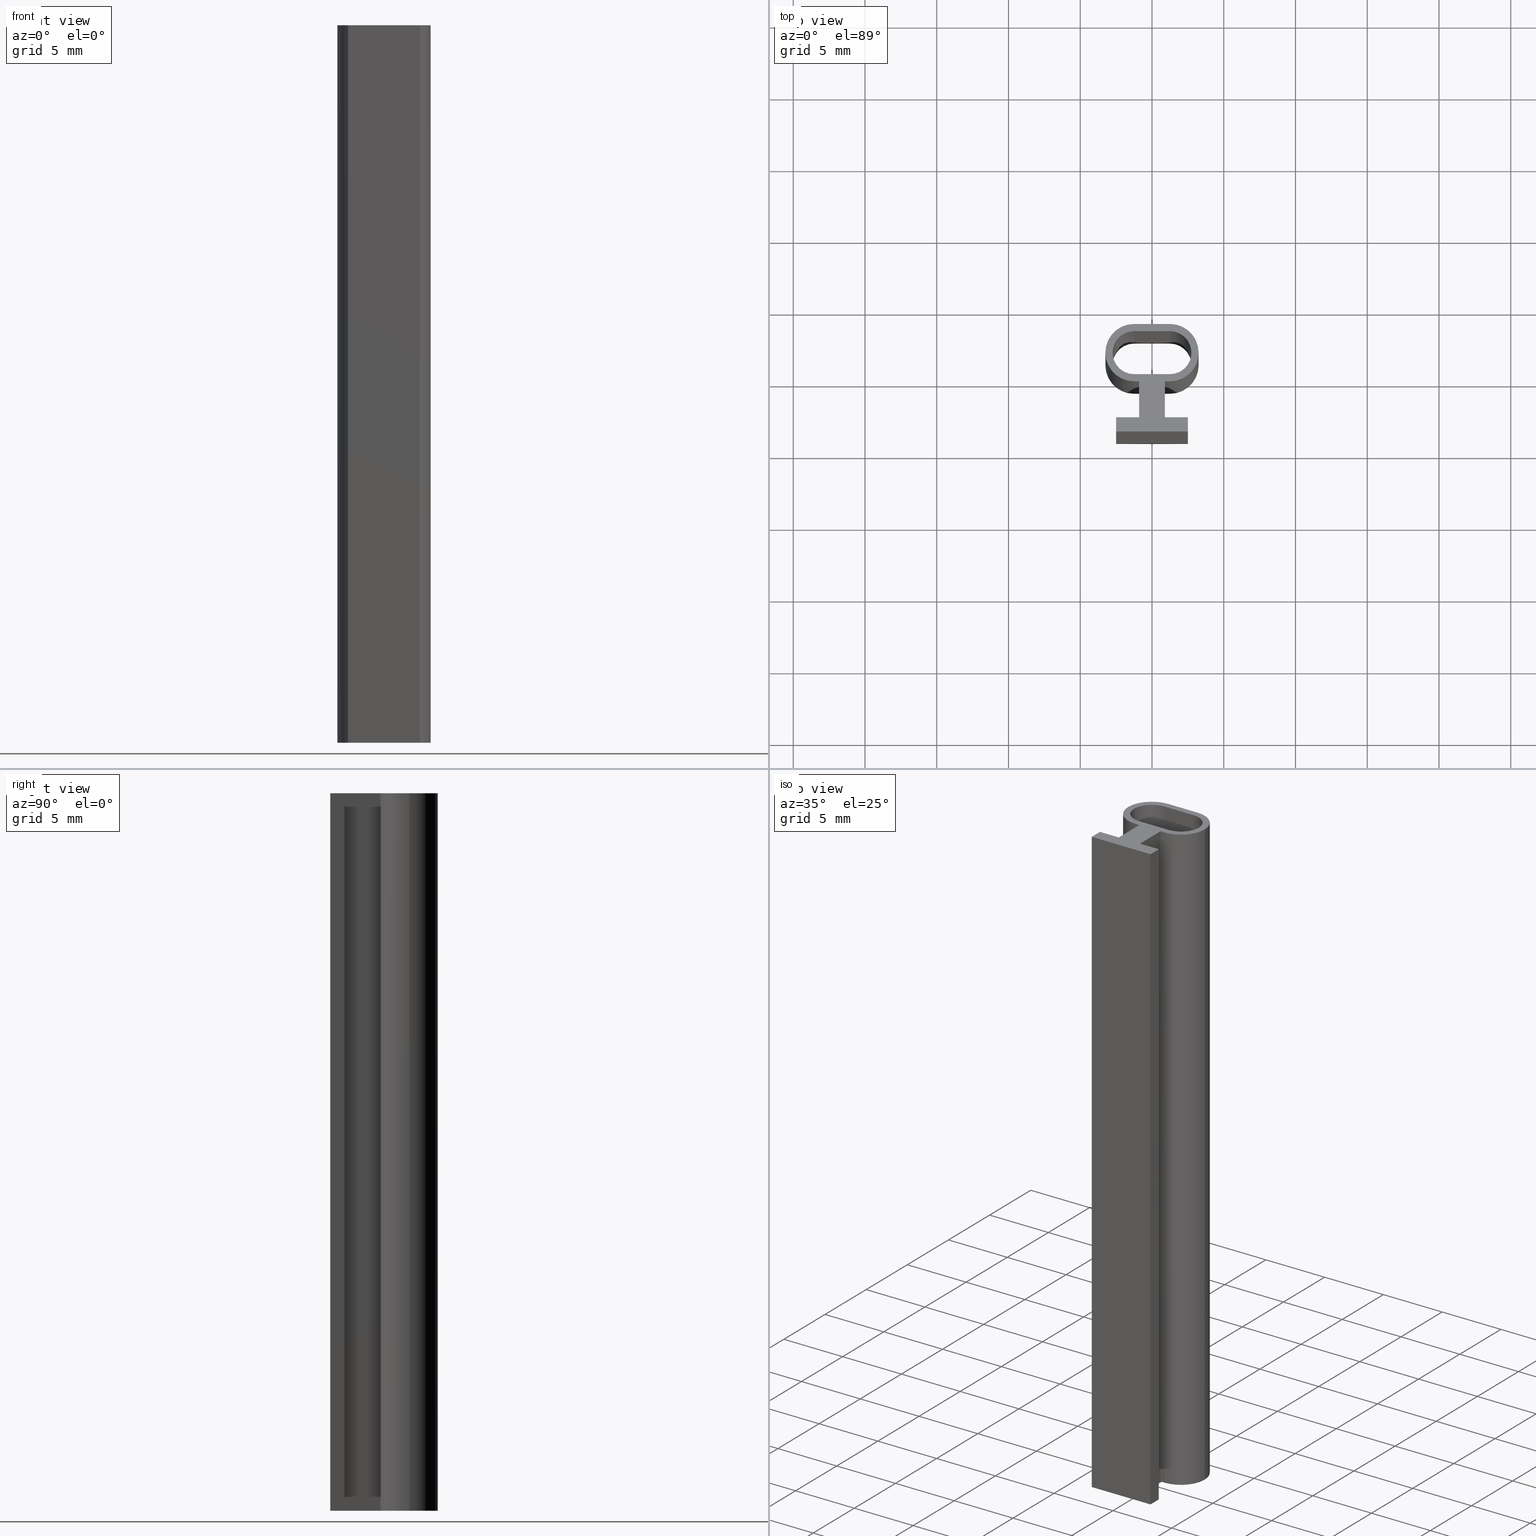
[diagram: canonical four-view strip — front | top / right | iso, engineering-drawing reading convention]
A machine part, canonical four-view strip (front | top / right | iso — engineering-drawing reading convention). The complete STEP part file that produces these views, byte-faithful:
ISO-10303-21;
HEADER;
/****************************************************************
 * Generated by software with PDE/Lib inside                    *
 * PDElib Version v4.4, created Mon 02/23/2004                  *
 * International Technegroup Inc. (www.iti-oh.com)              *
 ****************************************************************/
FILE_DESCRIPTION(('STEP AP203'),'2;1');
FILE_NAME('80GU0001.stp','2011-06-06T18:23:08',(''),(''),'2009.3.110','THINKDESIGN','');
FILE_SCHEMA(('CONFIG_CONTROL_DESIGN'));
ENDSEC;
DATA;
#2=CARTESIAN_POINT('',(1.250000000000000,1.500000000000000,-50.0));
#3=DIRECTION('',(0.0,0.0,1.0));
#4=DIRECTION('',(6.123234E-017,-1.0,0.0));
#5=AXIS2_PLACEMENT_3D('',#2,#3,#4);
#6=CYLINDRICAL_SURFACE('',#5,2.0);
#7=CARTESIAN_POINT('',(1.250000000000000,-0.500000000000000,-50.0));
#8=VERTEX_POINT('',#7);
#9=CARTESIAN_POINT('',(3.250000000000000,1.500000000000000,-50.0));
#10=VERTEX_POINT('',#9);
#11=CARTESIAN_POINT('',(1.250000000000000,1.500000000000000,-50.0));
#12=DIRECTION('',(0.0,0.0,1.0));
#13=DIRECTION('',(1.0,0.0,0.0));
#14=AXIS2_PLACEMENT_3D('',#11,#12,#13);
#15=CIRCLE('',#14,2.0);
#16=EDGE_CURVE('',#8,#10,#15,.T.);
#17=ORIENTED_EDGE('',*,*,#16,.T.);
#18=CARTESIAN_POINT('',(3.250000000000000,1.500000000000000,0.0));
#19=VERTEX_POINT('',#18);
#20=CARTESIAN_POINT('',(3.250000000000000,1.500000000000000,-50.0));
#21=DIRECTION('',(0.0,0.0,1.0));
#22=VECTOR('',#21,50.0);
#23=LINE('',#20,#22);
#24=EDGE_CURVE('',#10,#19,#23,.T.);
#25=ORIENTED_EDGE('',*,*,#24,.T.);
#26=CARTESIAN_POINT('',(1.250000000000000,-0.500000000000000,0.0));
#27=VERTEX_POINT('',#26);
#28=CARTESIAN_POINT('',(1.250000000000000,1.500000000000000,0.0));
#29=DIRECTION('',(0.0,0.0,1.0));
#30=DIRECTION('',(1.0,0.0,0.0));
#31=AXIS2_PLACEMENT_3D('',#28,#29,#30);
#32=CIRCLE('',#31,2.0);
#33=EDGE_CURVE('',#27,#19,#32,.T.);
#34=ORIENTED_EDGE('',*,*,#33,.F.);
#35=CARTESIAN_POINT('',(1.250000000000000,-0.500000000000000,-50.0));
#36=DIRECTION('',(0.0,0.0,1.0));
#37=VECTOR('',#36,50.0);
#38=LINE('',#35,#37);
#39=EDGE_CURVE('',#8,#27,#38,.T.);
#40=ORIENTED_EDGE('',*,*,#39,.F.);
#41=EDGE_LOOP('',(#17,#25,#34,#40));
#42=FACE_OUTER_BOUND('',#41,.T.);
#43=ADVANCED_FACE('',(#42),#6,.T.);
#44=CARTESIAN_POINT('',(1.250000000000000,1.500000000000000,-50.0));
#45=DIRECTION('',(0.0,0.0,1.0));
#46=DIRECTION('',(1.0,6.123234E-017,0.0));
#47=AXIS2_PLACEMENT_3D('',#44,#45,#46);
#48=CYLINDRICAL_SURFACE('',#47,2.0);
#49=CARTESIAN_POINT('',(1.250000000000000,3.500000000000000,-50.0));
#50=VERTEX_POINT('',#49);
#51=CARTESIAN_POINT('',(1.250000000000000,1.500000000000000,-50.0));
#52=DIRECTION('',(0.0,0.0,1.0));
#53=DIRECTION('',(0.0,1.0,0.0));
#54=AXIS2_PLACEMENT_3D('',#51,#52,#53);
#55=CIRCLE('',#54,2.0);
#56=EDGE_CURVE('',#10,#50,#55,.T.);
#57=ORIENTED_EDGE('',*,*,#56,.T.);
#58=CARTESIAN_POINT('',(1.250000000000000,3.500000000000000,0.0));
#59=VERTEX_POINT('',#58);
#60=CARTESIAN_POINT('',(1.250000000000000,3.500000000000000,-50.0));
#61=DIRECTION('',(0.0,0.0,1.0));
#62=VECTOR('',#61,50.0);
#63=LINE('',#60,#62);
#64=EDGE_CURVE('',#50,#59,#63,.T.);
#65=ORIENTED_EDGE('',*,*,#64,.T.);
#66=CARTESIAN_POINT('',(1.250000000000000,1.500000000000000,0.0));
#67=DIRECTION('',(0.0,0.0,1.0));
#68=DIRECTION('',(0.0,1.0,0.0));
#69=AXIS2_PLACEMENT_3D('',#66,#67,#68);
#70=CIRCLE('',#69,2.0);
#71=EDGE_CURVE('',#19,#59,#70,.T.);
#72=ORIENTED_EDGE('',*,*,#71,.F.);
#73=ORIENTED_EDGE('',*,*,#24,.F.);
#74=EDGE_LOOP('',(#57,#65,#72,#73));
#75=FACE_OUTER_BOUND('',#74,.T.);
#76=ADVANCED_FACE('',(#75),#48,.T.);
#77=CARTESIAN_POINT('',(1.250000000000000,3.500000000000000,-50.0));
#78=DIRECTION('',(0.0,1.0,0.0));
#79=DIRECTION('',(-1.0,0.0,0.0));
#80=AXIS2_PLACEMENT_3D('',#77,#78,#79);
#81=PLANE('',#80);
#82=CARTESIAN_POINT('',(-1.250000000000000,3.500000000000000,-50.0));
#83=VERTEX_POINT('',#82);
#84=CARTESIAN_POINT('',(1.250000000000000,3.500000000000000,-50.0));
#85=DIRECTION('',(-1.0,0.0,0.0));
#86=VECTOR('',#85,2.500000000000000);
#87=LINE('',#84,#86);
#88=EDGE_CURVE('',#50,#83,#87,.T.);
#89=ORIENTED_EDGE('',*,*,#88,.T.);
#90=CARTESIAN_POINT('',(-1.250000000000000,3.500000000000000,0.0));
#91=VERTEX_POINT('',#90);
#92=CARTESIAN_POINT('',(-1.250000000000000,3.500000000000000,-50.0));
#93=DIRECTION('',(0.0,0.0,1.0));
#94=VECTOR('',#93,50.0);
#95=LINE('',#92,#94);
#96=EDGE_CURVE('',#83,#91,#95,.T.);
#97=ORIENTED_EDGE('',*,*,#96,.T.);
#98=CARTESIAN_POINT('',(1.250000000000000,3.500000000000000,0.0));
#99=DIRECTION('',(-1.0,0.0,0.0));
#100=VECTOR('',#99,2.500000000000000);
#101=LINE('',#98,#100);
#102=EDGE_CURVE('',#59,#91,#101,.T.);
#103=ORIENTED_EDGE('',*,*,#102,.F.);
#104=ORIENTED_EDGE('',*,*,#64,.F.);
#105=EDGE_LOOP('',(#89,#97,#103,#104));
#106=FACE_OUTER_BOUND('',#105,.T.);
#107=ADVANCED_FACE('',(#106),#81,.T.);
#108=CARTESIAN_POINT('',(-1.250000000000000,1.500000000000000,-50.0));
#109=DIRECTION('',(0.0,0.0,1.0));
#110=DIRECTION('',(-6.123234E-017,1.0,0.0));
#111=AXIS2_PLACEMENT_3D('',#108,#109,#110);
#112=CYLINDRICAL_SURFACE('',#111,2.0);
#113=CARTESIAN_POINT('',(-3.250000000000000,1.500000000000000,-50.0));
#114=VERTEX_POINT('',#113);
#115=CARTESIAN_POINT('',(-1.250000000000000,1.500000000000000,-50.0));
#116=DIRECTION('',(0.0,0.0,1.0));
#117=DIRECTION('',(-1.0,0.0,0.0));
#118=AXIS2_PLACEMENT_3D('',#115,#116,#117);
#119=CIRCLE('',#118,2.0);
#120=EDGE_CURVE('',#83,#114,#119,.T.);
#121=ORIENTED_EDGE('',*,*,#120,.T.);
#122=CARTESIAN_POINT('',(-3.250000000000000,1.500000000000000,0.0));
#123=VERTEX_POINT('',#122);
#124=CARTESIAN_POINT('',(-3.250000000000000,1.500000000000000,-50.0));
#125=DIRECTION('',(0.0,0.0,1.0));
#126=VECTOR('',#125,50.0);
#127=LINE('',#124,#126);
#128=EDGE_CURVE('',#114,#123,#127,.T.);
#129=ORIENTED_EDGE('',*,*,#128,.T.);
#130=CARTESIAN_POINT('',(-1.250000000000000,1.500000000000000,0.0));
#131=DIRECTION('',(0.0,0.0,1.0));
#132=DIRECTION('',(-1.0,0.0,0.0));
#133=AXIS2_PLACEMENT_3D('',#130,#131,#132);
#134=CIRCLE('',#133,2.0);
#135=EDGE_CURVE('',#91,#123,#134,.T.);
#136=ORIENTED_EDGE('',*,*,#135,.F.);
#137=ORIENTED_EDGE('',*,*,#96,.F.);
#138=EDGE_LOOP('',(#121,#129,#136,#137));
#139=FACE_OUTER_BOUND('',#138,.T.);
#140=ADVANCED_FACE('',(#139),#112,.T.);
#141=CARTESIAN_POINT('',(-1.250000000000000,1.500000000000000,-50.0));
#142=DIRECTION('',(0.0,0.0,1.0));
#143=DIRECTION('',(-1.0,0.0,0.0));
#144=AXIS2_PLACEMENT_3D('',#141,#142,#143);
#145=CYLINDRICAL_SURFACE('',#144,2.0);
#146=CARTESIAN_POINT('',(-1.250000000000000,-0.500000000000000,-50.0));
#147=VERTEX_POINT('',#146);
#148=CARTESIAN_POINT('',(-1.250000000000000,1.500000000000000,-50.0));
#149=DIRECTION('',(0.0,0.0,1.0));
#150=DIRECTION('',(-1.0,0.0,0.0));
#151=AXIS2_PLACEMENT_3D('',#148,#149,#150);
#152=CIRCLE('',#151,2.0);
#153=EDGE_CURVE('',#114,#147,#152,.T.);
#154=ORIENTED_EDGE('',*,*,#153,.T.);
#155=CARTESIAN_POINT('',(-1.250000000000000,-0.500000000000000,0.0));
#156=VERTEX_POINT('',#155);
#157=CARTESIAN_POINT('',(-1.250000000000000,-0.500000000000000,-50.0));
#158=DIRECTION('',(0.0,0.0,1.0));
#159=VECTOR('',#158,50.0);
#160=LINE('',#157,#159);
#161=EDGE_CURVE('',#147,#156,#160,.T.);
#162=ORIENTED_EDGE('',*,*,#161,.T.);
#163=CARTESIAN_POINT('',(-1.250000000000000,1.500000000000000,0.0));
#164=DIRECTION('',(0.0,0.0,1.0));
#165=DIRECTION('',(-1.0,0.0,0.0));
#166=AXIS2_PLACEMENT_3D('',#163,#164,#165);
#167=CIRCLE('',#166,2.0);
#168=EDGE_CURVE('',#123,#156,#167,.T.);
#169=ORIENTED_EDGE('',*,*,#168,.F.);
#170=ORIENTED_EDGE('',*,*,#128,.F.);
#171=EDGE_LOOP('',(#154,#162,#169,#170));
#172=FACE_OUTER_BOUND('',#171,.T.);
#173=ADVANCED_FACE('',(#172),#145,.T.);
#174=CARTESIAN_POINT('',(-1.250000000000000,-0.500000000000000,-50.0));
#175=DIRECTION('',(0.0,-1.0,0.0));
#176=DIRECTION('',(1.0,0.0,0.0));
#177=AXIS2_PLACEMENT_3D('',#174,#175,#176);
#178=PLANE('',#177);
#179=CARTESIAN_POINT('',(-0.900000000000000,-0.500000000000000,-50.0));
#180=VERTEX_POINT('',#179);
#181=CARTESIAN_POINT('',(-1.250000000000000,-0.500000000000000,-50.0));
#182=DIRECTION('',(1.0,0.0,0.0));
#183=VECTOR('',#182,0.350000000000000);
#184=LINE('',#181,#183);
#185=EDGE_CURVE('',#147,#180,#184,.T.);
#186=ORIENTED_EDGE('',*,*,#185,.T.);
#187=CARTESIAN_POINT('',(-0.900000000000000,-0.500000000000000,0.0));
#188=VERTEX_POINT('',#187);
#189=CARTESIAN_POINT('',(-0.900000000000000,-0.500000000000000,-50.0));
#190=DIRECTION('',(0.0,0.0,1.0));
#191=VECTOR('',#190,50.0);
#192=LINE('',#189,#191);
#193=EDGE_CURVE('',#180,#188,#192,.T.);
#194=ORIENTED_EDGE('',*,*,#193,.T.);
#195=CARTESIAN_POINT('',(-1.250000000000000,-0.500000000000000,0.0));
#196=DIRECTION('',(1.0,0.0,0.0));
#197=VECTOR('',#196,0.350000000000000);
#198=LINE('',#195,#197);
#199=EDGE_CURVE('',#156,#188,#198,.T.);
#200=ORIENTED_EDGE('',*,*,#199,.F.);
#201=ORIENTED_EDGE('',*,*,#161,.F.);
#202=EDGE_LOOP('',(#186,#194,#200,#201));
#203=FACE_OUTER_BOUND('',#202,.T.);
#204=ADVANCED_FACE('',(#203),#178,.T.);
#205=CARTESIAN_POINT('',(-0.900000000000000,-0.500000000000000,-50.0));
#206=DIRECTION('',(-1.0,0.0,0.0));
#207=DIRECTION('',(0.0,-1.0,0.0));
#208=AXIS2_PLACEMENT_3D('',#205,#206,#207);
#209=PLANE('',#208);
#210=CARTESIAN_POINT('',(-0.900000000000000,-3.0,-50.0));
#211=VERTEX_POINT('',#210);
#212=CARTESIAN_POINT('',(-0.900000000000000,-0.500000000000000,-50.0));
#213=DIRECTION('',(0.0,-1.0,0.0));
#214=VECTOR('',#213,2.500000000000000);
#215=LINE('',#212,#214);
#216=EDGE_CURVE('',#180,#211,#215,.T.);
#217=ORIENTED_EDGE('',*,*,#216,.T.);
#218=CARTESIAN_POINT('',(-0.900000000000000,-3.0,0.0));
#219=VERTEX_POINT('',#218);
#220=CARTESIAN_POINT('',(-0.900000000000000,-3.0,-50.0));
#221=DIRECTION('',(0.0,0.0,1.0));
#222=VECTOR('',#221,50.0);
#223=LINE('',#220,#222);
#224=EDGE_CURVE('',#211,#219,#223,.T.);
#225=ORIENTED_EDGE('',*,*,#224,.T.);
#226=CARTESIAN_POINT('',(-0.900000000000000,-0.500000000000000,0.0));
#227=DIRECTION('',(0.0,-1.0,0.0));
#228=VECTOR('',#227,2.500000000000000);
#229=LINE('',#226,#228);
#230=EDGE_CURVE('',#188,#219,#229,.T.);
#231=ORIENTED_EDGE('',*,*,#230,.F.);
#232=ORIENTED_EDGE('',*,*,#193,.F.);
#233=EDGE_LOOP('',(#217,#225,#231,#232));
#234=FACE_OUTER_BOUND('',#233,.T.);
#235=ADVANCED_FACE('',(#234),#209,.T.);
#236=CARTESIAN_POINT('',(-0.900000000000000,-3.0,-50.0));
#237=DIRECTION('',(0.0,1.0,0.0));
#238=DIRECTION('',(-1.0,0.0,0.0));
#239=AXIS2_PLACEMENT_3D('',#236,#237,#238);
#240=PLANE('',#239);
#241=CARTESIAN_POINT('',(-2.500000000000000,-3.0,-50.0));
#242=VERTEX_POINT('',#241);
#243=CARTESIAN_POINT('',(-0.900000000000000,-3.0,-50.0));
#244=DIRECTION('',(-1.0,0.0,0.0));
#245=VECTOR('',#244,1.600000000000000);
#246=LINE('',#243,#245);
#247=EDGE_CURVE('',#211,#242,#246,.T.);
#248=ORIENTED_EDGE('',*,*,#247,.T.);
#249=CARTESIAN_POINT('',(-2.500000000000000,-3.0,0.0));
#250=VERTEX_POINT('',#249);
#251=CARTESIAN_POINT('',(-2.500000000000000,-3.0,-50.0));
#252=DIRECTION('',(0.0,0.0,1.0));
#253=VECTOR('',#252,50.0);
#254=LINE('',#251,#253);
#255=EDGE_CURVE('',#242,#250,#254,.T.);
#256=ORIENTED_EDGE('',*,*,#255,.T.);
#257=CARTESIAN_POINT('',(-0.900000000000000,-3.0,0.0));
#258=DIRECTION('',(-1.0,0.0,0.0));
#259=VECTOR('',#258,1.600000000000000);
#260=LINE('',#257,#259);
#261=EDGE_CURVE('',#219,#250,#260,.T.);
#262=ORIENTED_EDGE('',*,*,#261,.F.);
#263=ORIENTED_EDGE('',*,*,#224,.F.);
#264=EDGE_LOOP('',(#248,#256,#262,#263));
#265=FACE_OUTER_BOUND('',#264,.T.);
#266=ADVANCED_FACE('',(#265),#240,.T.);
#267=CARTESIAN_POINT('',(-2.500000000000000,-3.0,-50.0));
#268=DIRECTION('',(-1.0,0.0,0.0));
#269=DIRECTION('',(0.0,-1.0,0.0));
#270=AXIS2_PLACEMENT_3D('',#267,#268,#269);
#271=PLANE('',#270);
#272=CARTESIAN_POINT('',(-2.500000000000000,-4.0,-50.0));
#273=VERTEX_POINT('',#272);
#274=CARTESIAN_POINT('',(-2.500000000000000,-3.0,-50.0));
#275=DIRECTION('',(0.0,-1.0,0.0));
#276=VECTOR('',#275,1.0);
#277=LINE('',#274,#276);
#278=EDGE_CURVE('',#242,#273,#277,.T.);
#279=ORIENTED_EDGE('',*,*,#278,.T.);
#280=CARTESIAN_POINT('',(-2.500000000000000,-4.0,0.0));
#281=VERTEX_POINT('',#280);
#282=CARTESIAN_POINT('',(-2.500000000000000,-4.0,-50.0));
#283=DIRECTION('',(0.0,0.0,1.0));
#284=VECTOR('',#283,50.0);
#285=LINE('',#282,#284);
#286=EDGE_CURVE('',#273,#281,#285,.T.);
#287=ORIENTED_EDGE('',*,*,#286,.T.);
#288=CARTESIAN_POINT('',(-2.500000000000000,-3.0,0.0));
#289=DIRECTION('',(0.0,-1.0,0.0));
#290=VECTOR('',#289,1.0);
#291=LINE('',#288,#290);
#292=EDGE_CURVE('',#250,#281,#291,.T.);
#293=ORIENTED_EDGE('',*,*,#292,.F.);
#294=ORIENTED_EDGE('',*,*,#255,.F.);
#295=EDGE_LOOP('',(#279,#287,#293,#294));
#296=FACE_OUTER_BOUND('',#295,.T.);
#297=ADVANCED_FACE('',(#296),#271,.T.);
#298=CARTESIAN_POINT('',(-2.500000000000000,-4.0,-50.0));
#299=DIRECTION('',(0.0,-1.0,0.0));
#300=DIRECTION('',(1.0,0.0,0.0));
#301=AXIS2_PLACEMENT_3D('',#298,#299,#300);
#302=PLANE('',#301);
#303=CARTESIAN_POINT('',(2.500000000000000,-4.0,-50.0));
#304=VERTEX_POINT('',#303);
#305=CARTESIAN_POINT('',(-2.500000000000000,-4.0,-50.0));
#306=DIRECTION('',(1.0,0.0,0.0));
#307=VECTOR('',#306,5.0);
#308=LINE('',#305,#307);
#309=EDGE_CURVE('',#273,#304,#308,.T.);
#310=ORIENTED_EDGE('',*,*,#309,.T.);
#311=CARTESIAN_POINT('',(2.500000000000000,-4.0,0.0));
#312=VERTEX_POINT('',#311);
#313=CARTESIAN_POINT('',(2.500000000000000,-4.0,-50.0));
#314=DIRECTION('',(0.0,0.0,1.0));
#315=VECTOR('',#314,50.0);
#316=LINE('',#313,#315);
#317=EDGE_CURVE('',#304,#312,#316,.T.);
#318=ORIENTED_EDGE('',*,*,#317,.T.);
#319=CARTESIAN_POINT('',(-2.500000000000000,-4.0,0.0));
#320=DIRECTION('',(1.0,0.0,0.0));
#321=VECTOR('',#320,5.0);
#322=LINE('',#319,#321);
#323=EDGE_CURVE('',#281,#312,#322,.T.);
#324=ORIENTED_EDGE('',*,*,#323,.F.);
#325=ORIENTED_EDGE('',*,*,#286,.F.);
#326=EDGE_LOOP('',(#310,#318,#324,#325));
#327=FACE_OUTER_BOUND('',#326,.T.);
#328=ADVANCED_FACE('',(#327),#302,.T.);
#329=CARTESIAN_POINT('',(2.500000000000000,-4.0,-50.0));
#330=DIRECTION('',(1.0,0.0,0.0));
#331=DIRECTION('',(0.0,1.0,0.0));
#332=AXIS2_PLACEMENT_3D('',#329,#330,#331);
#333=PLANE('',#332);
#334=CARTESIAN_POINT('',(2.500000000000000,-3.0,-50.0));
#335=VERTEX_POINT('',#334);
#336=CARTESIAN_POINT('',(2.500000000000000,-4.0,-50.0));
#337=DIRECTION('',(0.0,1.0,0.0));
#338=VECTOR('',#337,1.0);
#339=LINE('',#336,#338);
#340=EDGE_CURVE('',#304,#335,#339,.T.);
#341=ORIENTED_EDGE('',*,*,#340,.T.);
#342=CARTESIAN_POINT('',(2.500000000000000,-3.0,0.0));
#343=VERTEX_POINT('',#342);
#344=CARTESIAN_POINT('',(2.500000000000000,-3.0,-50.0));
#345=DIRECTION('',(0.0,0.0,1.0));
#346=VECTOR('',#345,50.0);
#347=LINE('',#344,#346);
#348=EDGE_CURVE('',#335,#343,#347,.T.);
#349=ORIENTED_EDGE('',*,*,#348,.T.);
#350=CARTESIAN_POINT('',(2.500000000000000,-4.0,0.0));
#351=DIRECTION('',(0.0,1.0,0.0));
#352=VECTOR('',#351,1.0);
#353=LINE('',#350,#352);
#354=EDGE_CURVE('',#312,#343,#353,.T.);
#355=ORIENTED_EDGE('',*,*,#354,.F.);
#356=ORIENTED_EDGE('',*,*,#317,.F.);
#357=EDGE_LOOP('',(#341,#349,#355,#356));
#358=FACE_OUTER_BOUND('',#357,.T.);
#359=ADVANCED_FACE('',(#358),#333,.T.);
#360=CARTESIAN_POINT('',(2.500000000000000,-3.0,-50.0));
#361=DIRECTION('',(0.0,1.0,0.0));
#362=DIRECTION('',(-1.0,0.0,0.0));
#363=AXIS2_PLACEMENT_3D('',#360,#361,#362);
#364=PLANE('',#363);
#365=CARTESIAN_POINT('',(0.900000000000000,-3.0,-50.0));
#366=VERTEX_POINT('',#365);
#367=CARTESIAN_POINT('',(2.500000000000000,-3.0,-50.0));
#368=DIRECTION('',(-1.0,0.0,0.0));
#369=VECTOR('',#368,1.600000000000000);
#370=LINE('',#367,#369);
#371=EDGE_CURVE('',#335,#366,#370,.T.);
#372=ORIENTED_EDGE('',*,*,#371,.T.);
#373=CARTESIAN_POINT('',(0.900000000000000,-3.0,0.0));
#374=VERTEX_POINT('',#373);
#375=CARTESIAN_POINT('',(0.900000000000000,-3.0,-50.0));
#376=DIRECTION('',(0.0,0.0,1.0));
#377=VECTOR('',#376,50.0);
#378=LINE('',#375,#377);
#379=EDGE_CURVE('',#366,#374,#378,.T.);
#380=ORIENTED_EDGE('',*,*,#379,.T.);
#381=CARTESIAN_POINT('',(2.500000000000000,-3.0,0.0));
#382=DIRECTION('',(-1.0,0.0,0.0));
#383=VECTOR('',#382,1.600000000000000);
#384=LINE('',#381,#383);
#385=EDGE_CURVE('',#343,#374,#384,.T.);
#386=ORIENTED_EDGE('',*,*,#385,.F.);
#387=ORIENTED_EDGE('',*,*,#348,.F.);
#388=EDGE_LOOP('',(#372,#380,#386,#387));
#389=FACE_OUTER_BOUND('',#388,.T.);
#390=ADVANCED_FACE('',(#389),#364,.T.);
#391=CARTESIAN_POINT('',(0.900000000000000,-3.0,-50.0));
#392=DIRECTION('',(1.0,0.0,0.0));
#393=DIRECTION('',(0.0,1.0,0.0));
#394=AXIS2_PLACEMENT_3D('',#391,#392,#393);
#395=PLANE('',#394);
#396=CARTESIAN_POINT('',(0.900000000000000,-0.500000000000000,-50.0));
#397=VERTEX_POINT('',#396);
#398=CARTESIAN_POINT('',(0.900000000000000,-3.0,-50.0));
#399=DIRECTION('',(0.0,1.0,0.0));
#400=VECTOR('',#399,2.500000000000000);
#401=LINE('',#398,#400);
#402=EDGE_CURVE('',#366,#397,#401,.T.);
#403=ORIENTED_EDGE('',*,*,#402,.T.);
#404=CARTESIAN_POINT('',(0.900000000000000,-0.500000000000000,0.0));
#405=VERTEX_POINT('',#404);
#406=CARTESIAN_POINT('',(0.900000000000000,-0.500000000000000,-50.0));
#407=DIRECTION('',(0.0,0.0,1.0));
#408=VECTOR('',#407,50.0);
#409=LINE('',#406,#408);
#410=EDGE_CURVE('',#397,#405,#409,.T.);
#411=ORIENTED_EDGE('',*,*,#410,.T.);
#412=CARTESIAN_POINT('',(0.900000000000000,-3.0,0.0));
#413=DIRECTION('',(0.0,1.0,0.0));
#414=VECTOR('',#413,2.500000000000000);
#415=LINE('',#412,#414);
#416=EDGE_CURVE('',#374,#405,#415,.T.);
#417=ORIENTED_EDGE('',*,*,#416,.F.);
#418=ORIENTED_EDGE('',*,*,#379,.F.);
#419=EDGE_LOOP('',(#403,#411,#417,#418));
#420=FACE_OUTER_BOUND('',#419,.T.);
#421=ADVANCED_FACE('',(#420),#395,.T.);
#422=CARTESIAN_POINT('',(0.900000000000000,-0.500000000000000,-50.0));
#423=DIRECTION('',(0.0,-1.0,0.0));
#424=DIRECTION('',(1.0,0.0,0.0));
#425=AXIS2_PLACEMENT_3D('',#422,#423,#424);
#426=PLANE('',#425);
#427=CARTESIAN_POINT('',(0.900000000000000,-0.500000000000000,-50.0));
#428=DIRECTION('',(1.0,0.0,0.0));
#429=VECTOR('',#428,0.350000000000000);
#430=LINE('',#427,#429);
#431=EDGE_CURVE('',#397,#8,#430,.T.);
#432=ORIENTED_EDGE('',*,*,#431,.T.);
#433=ORIENTED_EDGE('',*,*,#39,.T.);
#434=CARTESIAN_POINT('',(0.900000000000000,-0.500000000000000,0.0));
#435=DIRECTION('',(1.0,0.0,0.0));
#436=VECTOR('',#435,0.350000000000000);
#437=LINE('',#434,#436);
#438=EDGE_CURVE('',#405,#27,#437,.T.);
#439=ORIENTED_EDGE('',*,*,#438,.F.);
#440=ORIENTED_EDGE('',*,*,#410,.F.);
#441=EDGE_LOOP('',(#432,#433,#439,#440));
#442=FACE_OUTER_BOUND('',#441,.T.);
#443=ADVANCED_FACE('',(#442),#426,.T.);
#444=CARTESIAN_POINT('',(-1.250000000000000,3.0,-50.0));
#445=DIRECTION('',(0.0,-1.0,0.0));
#446=DIRECTION('',(1.0,0.0,0.0));
#447=AXIS2_PLACEMENT_3D('',#444,#445,#446);
#448=PLANE('',#447);
#449=CARTESIAN_POINT('',(-1.250000000000000,3.0,-50.0));
#450=VERTEX_POINT('',#449);
#451=CARTESIAN_POINT('',(1.250000000000000,3.0,-50.0));
#452=VERTEX_POINT('',#451);
#453=CARTESIAN_POINT('',(-1.250000000000000,3.0,-50.0));
#454=DIRECTION('',(1.0,0.0,0.0));
#455=VECTOR('',#454,2.500000000000000);
#456=LINE('',#453,#455);
#457=EDGE_CURVE('',#450,#452,#456,.T.);
#458=ORIENTED_EDGE('',*,*,#457,.T.);
#459=CARTESIAN_POINT('',(1.250000000000000,3.0,0.0));
#460=VERTEX_POINT('',#459);
#461=CARTESIAN_POINT('',(1.250000000000000,3.0,-50.0));
#462=DIRECTION('',(0.0,0.0,1.0));
#463=VECTOR('',#462,50.0);
#464=LINE('',#461,#463);
#465=EDGE_CURVE('',#452,#460,#464,.T.);
#466=ORIENTED_EDGE('',*,*,#465,.T.);
#467=CARTESIAN_POINT('',(-1.250000000000000,3.0,0.0));
#468=VERTEX_POINT('',#467);
#469=CARTESIAN_POINT('',(-1.250000000000000,3.0,0.0));
#470=DIRECTION('',(1.0,0.0,0.0));
#471=VECTOR('',#470,2.500000000000000);
#472=LINE('',#469,#471);
#473=EDGE_CURVE('',#468,#460,#472,.T.);
#474=ORIENTED_EDGE('',*,*,#473,.F.);
#475=CARTESIAN_POINT('',(-1.250000000000000,3.0,-50.0));
#476=DIRECTION('',(0.0,0.0,1.0));
#477=VECTOR('',#476,50.0);
#478=LINE('',#475,#477);
#479=EDGE_CURVE('',#450,#468,#478,.T.);
#480=ORIENTED_EDGE('',*,*,#479,.F.);
#481=EDGE_LOOP('',(#458,#466,#474,#480));
#482=FACE_OUTER_BOUND('',#481,.T.);
#483=ADVANCED_FACE('',(#482),#448,.T.);
#484=CARTESIAN_POINT('',(1.250000000000000,1.500000000000000,-50.0));
#485=DIRECTION('',(0.0,0.0,-1.0));
#486=DIRECTION('',(1.224647E-016,1.0,0.0));
#487=AXIS2_PLACEMENT_3D('',#484,#485,#486);
#488=CYLINDRICAL_SURFACE('',#487,1.500000000000000);
#489=CARTESIAN_POINT('',(1.250000000000000,0.0,-50.0));
#490=VERTEX_POINT('',#489);
#491=CARTESIAN_POINT('',(1.250000000000000,1.500000000000000,-50.0));
#492=DIRECTION('',(0.0,0.0,-1.0));
#493=DIRECTION('',(0.0,-1.0,0.0));
#494=AXIS2_PLACEMENT_3D('',#491,#492,#493);
#495=CIRCLE('',#494,1.500000000000000);
#496=EDGE_CURVE('',#452,#490,#495,.T.);
#497=ORIENTED_EDGE('',*,*,#496,.T.);
#498=CARTESIAN_POINT('',(1.250000000000000,0.0,0.0));
#499=VERTEX_POINT('',#498);
#500=CARTESIAN_POINT('',(1.250000000000000,0.0,-50.0));
#501=DIRECTION('',(0.0,0.0,1.0));
#502=VECTOR('',#501,50.0);
#503=LINE('',#500,#502);
#504=EDGE_CURVE('',#490,#499,#503,.T.);
#505=ORIENTED_EDGE('',*,*,#504,.T.);
#506=CARTESIAN_POINT('',(1.250000000000000,1.500000000000000,0.0));
#507=DIRECTION('',(0.0,0.0,-1.0));
#508=DIRECTION('',(0.0,-1.0,0.0));
#509=AXIS2_PLACEMENT_3D('',#506,#507,#508);
#510=CIRCLE('',#509,1.500000000000000);
#511=EDGE_CURVE('',#460,#499,#510,.T.);
#512=ORIENTED_EDGE('',*,*,#511,.F.);
#513=ORIENTED_EDGE('',*,*,#465,.F.);
#514=EDGE_LOOP('',(#497,#505,#512,#513));
#515=FACE_OUTER_BOUND('',#514,.T.);
#516=ADVANCED_FACE('',(#515),#488,.F.);
#517=CARTESIAN_POINT('',(1.250000000000000,0.0,-50.0));
#518=DIRECTION('',(0.0,1.0,0.0));
#519=DIRECTION('',(-1.0,0.0,0.0));
#520=AXIS2_PLACEMENT_3D('',#517,#518,#519);
#521=PLANE('',#520);
#522=CARTESIAN_POINT('',(-1.250000000000000,0.0,-50.0));
#523=VERTEX_POINT('',#522);
#524=CARTESIAN_POINT('',(1.250000000000000,0.0,-50.0));
#525=DIRECTION('',(-1.0,0.0,0.0));
#526=VECTOR('',#525,2.500000000000000);
#527=LINE('',#524,#526);
#528=EDGE_CURVE('',#490,#523,#527,.T.);
#529=ORIENTED_EDGE('',*,*,#528,.T.);
#530=CARTESIAN_POINT('',(-1.250000000000000,0.0,0.0));
#531=VERTEX_POINT('',#530);
#532=CARTESIAN_POINT('',(-1.250000000000000,0.0,-50.0));
#533=DIRECTION('',(0.0,0.0,1.0));
#534=VECTOR('',#533,50.0);
#535=LINE('',#532,#534);
#536=EDGE_CURVE('',#523,#531,#535,.T.);
#537=ORIENTED_EDGE('',*,*,#536,.T.);
#538=CARTESIAN_POINT('',(1.250000000000000,0.0,0.0));
#539=DIRECTION('',(-1.0,0.0,0.0));
#540=VECTOR('',#539,2.500000000000000);
#541=LINE('',#538,#540);
#542=EDGE_CURVE('',#499,#531,#541,.T.);
#543=ORIENTED_EDGE('',*,*,#542,.F.);
#544=ORIENTED_EDGE('',*,*,#504,.F.);
#545=EDGE_LOOP('',(#529,#537,#543,#544));
#546=FACE_OUTER_BOUND('',#545,.T.);
#547=ADVANCED_FACE('',(#546),#521,.T.);
#548=CARTESIAN_POINT('',(-1.250000000000000,1.500000000000000,-50.0));
#549=DIRECTION('',(0.0,0.0,-1.0));
#550=DIRECTION('',(-1.224647E-016,-1.0,0.0));
#551=AXIS2_PLACEMENT_3D('',#548,#549,#550);
#552=CYLINDRICAL_SURFACE('',#551,1.500000000000000);
#553=CARTESIAN_POINT('',(-1.250000000000000,1.500000000000000,-50.0));
#554=DIRECTION('',(0.0,0.0,-1.0));
#555=DIRECTION('',(0.0,1.0,0.0));
#556=AXIS2_PLACEMENT_3D('',#553,#554,#555);
#557=CIRCLE('',#556,1.500000000000000);
#558=EDGE_CURVE('',#523,#450,#557,.T.);
#559=ORIENTED_EDGE('',*,*,#558,.T.);
#560=ORIENTED_EDGE('',*,*,#479,.T.);
#561=CARTESIAN_POINT('',(-1.250000000000000,1.500000000000000,0.0));
#562=DIRECTION('',(0.0,0.0,-1.0));
#563=DIRECTION('',(0.0,1.0,0.0));
#564=AXIS2_PLACEMENT_3D('',#561,#562,#563);
#565=CIRCLE('',#564,1.500000000000000);
#566=EDGE_CURVE('',#531,#468,#565,.T.);
#567=ORIENTED_EDGE('',*,*,#566,.F.);
#568=ORIENTED_EDGE('',*,*,#536,.F.);
#569=EDGE_LOOP('',(#559,#560,#567,#568));
#570=FACE_OUTER_BOUND('',#569,.T.);
#571=ADVANCED_FACE('',(#570),#552,.F.);
#572=CARTESIAN_POINT('',(-3.900000518320482,-4.750000518328143,-50.0));
#573=DIRECTION('',(0.0,0.0,1.0));
#574=DIRECTION('',(1.0,0.0,0.0));
#575=AXIS2_PLACEMENT_3D('',#572,#573,#574);
#576=PLANE('',#575);
#577=ORIENTED_EDGE('',*,*,#431,.F.);
#578=ORIENTED_EDGE('',*,*,#402,.F.);
#579=ORIENTED_EDGE('',*,*,#371,.F.);
#580=ORIENTED_EDGE('',*,*,#340,.F.);
#581=ORIENTED_EDGE('',*,*,#309,.F.);
#582=ORIENTED_EDGE('',*,*,#278,.F.);
#583=ORIENTED_EDGE('',*,*,#247,.F.);
#584=ORIENTED_EDGE('',*,*,#216,.F.);
#585=ORIENTED_EDGE('',*,*,#185,.F.);
#586=ORIENTED_EDGE('',*,*,#153,.F.);
#587=ORIENTED_EDGE('',*,*,#120,.F.);
#588=ORIENTED_EDGE('',*,*,#88,.F.);
#589=ORIENTED_EDGE('',*,*,#56,.F.);
#590=ORIENTED_EDGE('',*,*,#16,.F.);
#591=EDGE_LOOP('',(#577,#578,#579,#580,#581,#582,#583,#584,#585,#586,#587,#588,#589,#590));
#592=FACE_OUTER_BOUND('',#591,.T.);
#593=ORIENTED_EDGE('',*,*,#558,.F.);
#594=ORIENTED_EDGE('',*,*,#528,.F.);
#595=ORIENTED_EDGE('',*,*,#496,.F.);
#596=ORIENTED_EDGE('',*,*,#457,.F.);
#597=EDGE_LOOP('',(#593,#594,#595,#596));
#598=FACE_BOUND('',#597,.T.);
#599=ADVANCED_FACE('',(#592,#598),#576,.F.);
#600=CARTESIAN_POINT('',(-3.900000518320482,-4.750000518328143,0.0));
#601=DIRECTION('',(0.0,0.0,1.0));
#602=DIRECTION('',(1.0,0.0,0.0));
#603=AXIS2_PLACEMENT_3D('',#600,#601,#602);
#604=PLANE('',#603);
#605=ORIENTED_EDGE('',*,*,#33,.T.);
#606=ORIENTED_EDGE('',*,*,#71,.T.);
#607=ORIENTED_EDGE('',*,*,#102,.T.);
#608=ORIENTED_EDGE('',*,*,#135,.T.);
#609=ORIENTED_EDGE('',*,*,#168,.T.);
#610=ORIENTED_EDGE('',*,*,#199,.T.);
#611=ORIENTED_EDGE('',*,*,#230,.T.);
#612=ORIENTED_EDGE('',*,*,#261,.T.);
#613=ORIENTED_EDGE('',*,*,#292,.T.);
#614=ORIENTED_EDGE('',*,*,#323,.T.);
#615=ORIENTED_EDGE('',*,*,#354,.T.);
#616=ORIENTED_EDGE('',*,*,#385,.T.);
#617=ORIENTED_EDGE('',*,*,#416,.T.);
#618=ORIENTED_EDGE('',*,*,#438,.T.);
#619=EDGE_LOOP('',(#605,#606,#607,#608,#609,#610,#611,#612,#613,#614,#615,#616,#617,#618));
#620=FACE_OUTER_BOUND('',#619,.T.);
#621=ORIENTED_EDGE('',*,*,#473,.T.);
#622=ORIENTED_EDGE('',*,*,#511,.T.);
#623=ORIENTED_EDGE('',*,*,#542,.T.);
#624=ORIENTED_EDGE('',*,*,#566,.T.);
#625=EDGE_LOOP('',(#621,#622,#623,#624));
#626=FACE_BOUND('',#625,.T.);
#627=ADVANCED_FACE('',(#620,#626),#604,.T.);
#628=CLOSED_SHELL('',(#43,#76,#107,#140,#173,#204,#235,#266,#297,#328,#359,#390,#421,#443,#483,#516,#547,#571,#599,#627));
#629=MANIFOLD_SOLID_BREP('',#628);
#635=(NAMED_UNIT(*)PLANE_ANGLE_UNIT()SI_UNIT($,.RADIAN.));
#636=DIMENSIONAL_EXPONENTS(0.0,0.0,0.0,0.0,0.0,0.0,0.0);
#637=PLANE_ANGLE_MEASURE_WITH_UNIT(PLANE_ANGLE_MEASURE(0.017453292500000),#635);
#641=(CONVERSION_BASED_UNIT('DEGREE',#637)NAMED_UNIT(#636)PLANE_ANGLE_UNIT());
#645=(NAMED_UNIT(*)SI_UNIT($,.STERADIAN.)SOLID_ANGLE_UNIT());
#649=(LENGTH_UNIT()NAMED_UNIT(*)SI_UNIT(.MILLI.,.METRE.));
#651=UNCERTAINTY_MEASURE_WITH_UNIT(LENGTH_MEASURE(0.001000000000000),#649,'DISTANCE_ACCURACY_VALUE','');
#653=(GEOMETRIC_REPRESENTATION_CONTEXT(3)GLOBAL_UNCERTAINTY_ASSIGNED_CONTEXT((#651))GLOBAL_UNIT_ASSIGNED_CONTEXT((#641,#645,#649))REPRESENTATION_CONTEXT('thinkdesign','2009.3.110'));
#654=ADVANCED_BREP_SHAPE_REPRESENTATION('',(#629),#653);
#655=APPLICATION_CONTEXT('configuration controlled 3D designs of mechanical parts and assemblies');
#656=APPLICATION_PROTOCOL_DEFINITION('International Standard','config_control_design',1995,#655);
#657=MECHANICAL_CONTEXT('None',#655,'mechanical');
#658=PRODUCT('None','None','None',(#657));
#659=PRODUCT_RELATED_PRODUCT_CATEGORY('detail',$,(#658));
#660=PRODUCT_CATEGORY('part',$);
#661=PRODUCT_CATEGORY_RELATIONSHIP('None','None',#660,#659);
#662=PERSON('PERSON1','None','None',$,$,$);
#663=ORGANIZATION('','None','None');
#664=PERSON_AND_ORGANIZATION(#662,#663);
#665=PERSON_AND_ORGANIZATION_ROLE('design_owner');
#666=CC_DESIGN_PERSON_AND_ORGANIZATION_ASSIGNMENT(#664,#665,(#658));
#667=PRODUCT_DEFINITION_FORMATION_WITH_SPECIFIED_SOURCE('None','None',#658,.NOT_KNOWN.);
#668=PERSON('PERSON2','None','None',$,$,$);
#669=ORGANIZATION('','None','None');
#670=PERSON_AND_ORGANIZATION(#668,#669);
#671=PERSON_AND_ORGANIZATION_ROLE('creator');
#672=CC_DESIGN_PERSON_AND_ORGANIZATION_ASSIGNMENT(#670,#671,(#667));
#673=PERSON('PERSON3','None','None',$,$,$);
#674=ORGANIZATION('','None','None');
#675=PERSON_AND_ORGANIZATION(#673,#674);
#676=PERSON_AND_ORGANIZATION_ROLE('part_supplier');
#677=CC_DESIGN_PERSON_AND_ORGANIZATION_ASSIGNMENT(#675,#676,(#667));
#678=APPROVAL_STATUS('approved');
#679=APPROVAL(#678,'None');
#680=PERSON('PERSON4','None','None',$,$,$);
#681=ORGANIZATION('','None','None');
#682=PERSON_AND_ORGANIZATION(#680,#681);
#683=APPROVAL_ROLE('None');
#684=APPROVAL_PERSON_ORGANIZATION(#682,#679,#683);
#685=CALENDAR_DATE(2011,6,6);
#686=COORDINATED_UNIVERSAL_TIME_OFFSET(0,0,.AHEAD.);
#687=LOCAL_TIME(18,23,8.0,#686);
#688=DATE_AND_TIME(#685,#687);
#689=APPROVAL_DATE_TIME(#688,#679);
#690=CC_DESIGN_APPROVAL(#679,(#667));
#691=SECURITY_CLASSIFICATION_LEVEL('unclassified');
#692=SECURITY_CLASSIFICATION('None','None',#691);
#693=CC_DESIGN_SECURITY_CLASSIFICATION(#692,(#667));
#694=APPROVAL_STATUS('approved');
#695=APPROVAL(#694,'None');
#696=PERSON('PERSON5','None','None',$,$,$);
#697=ORGANIZATION('','None','None');
#698=PERSON_AND_ORGANIZATION(#696,#697);
#699=APPROVAL_ROLE('None');
#700=APPROVAL_PERSON_ORGANIZATION(#698,#695,#699);
#701=CALENDAR_DATE(2011,6,6);
#702=COORDINATED_UNIVERSAL_TIME_OFFSET(0,0,.AHEAD.);
#703=LOCAL_TIME(18,23,8.0,#702);
#704=DATE_AND_TIME(#701,#703);
#705=APPROVAL_DATE_TIME(#704,#695);
#706=CC_DESIGN_APPROVAL(#695,(#692));
#707=PERSON('PERSON6','None','None',$,$,$);
#708=ORGANIZATION('','None','None');
#709=PERSON_AND_ORGANIZATION(#707,#708);
#710=PERSON_AND_ORGANIZATION_ROLE('classification_officer');
#711=CC_DESIGN_PERSON_AND_ORGANIZATION_ASSIGNMENT(#709,#710,(#692));
#712=DATE_TIME_ROLE('classification_date');
#713=CALENDAR_DATE(2011,6,6);
#714=COORDINATED_UNIVERSAL_TIME_OFFSET(0,0,.AHEAD.);
#715=LOCAL_TIME(18,23,8.0,#714);
#716=DATE_AND_TIME(#713,#715);
#717=CC_DESIGN_DATE_AND_TIME_ASSIGNMENT(#716,#712,(#692));
#718=DESIGN_CONTEXT('part definition',#655,'design');
#719=DOCUMENT_TYPE('cad_filename');
#720=DOCUMENT('None','None','None',#719);
#721=PRODUCT_DEFINITION_WITH_ASSOCIATED_DOCUMENTS('None','None',#667,#718,(#720));
#722=PERSON('PERSON7','None','None',$,$,$);
#723=ORGANIZATION('','None','None');
#724=PERSON_AND_ORGANIZATION(#722,#723);
#725=PERSON_AND_ORGANIZATION_ROLE('creator');
#726=CC_DESIGN_PERSON_AND_ORGANIZATION_ASSIGNMENT(#724,#725,(#721));
#727=DATE_TIME_ROLE('creation_date');
#728=CALENDAR_DATE(2011,6,6);
#729=COORDINATED_UNIVERSAL_TIME_OFFSET(0,0,.AHEAD.);
#730=LOCAL_TIME(18,23,8.0,#729);
#731=DATE_AND_TIME(#728,#730);
#732=CC_DESIGN_DATE_AND_TIME_ASSIGNMENT(#731,#727,(#721));
#733=APPROVAL_STATUS('approved');
#734=APPROVAL(#733,'None');
#735=PERSON('PERSON8','None','None',$,$,$);
#736=ORGANIZATION('','None','None');
#737=PERSON_AND_ORGANIZATION(#735,#736);
#738=APPROVAL_ROLE('None');
#739=APPROVAL_PERSON_ORGANIZATION(#737,#734,#738);
#740=CALENDAR_DATE(2011,6,6);
#741=COORDINATED_UNIVERSAL_TIME_OFFSET(0,0,.AHEAD.);
#742=LOCAL_TIME(18,23,8.0,#741);
#743=DATE_AND_TIME(#740,#742);
#744=APPROVAL_DATE_TIME(#743,#734);
#745=CC_DESIGN_APPROVAL(#734,(#721));
#746=PRODUCT_DEFINITION_SHAPE('None','None',#721);
#747=SHAPE_DEFINITION_REPRESENTATION(#746,#654);
#748=DIMENSIONAL_EXPONENTS(0.0,0.0,0.0,0.0,0.0,0.0,0.0);
#749=DIMENSIONAL_EXPONENTS(1.0,0.0,0.0,0.0,0.0,0.0,0.0);
ENDSEC;
END-ISO-10303-21;
